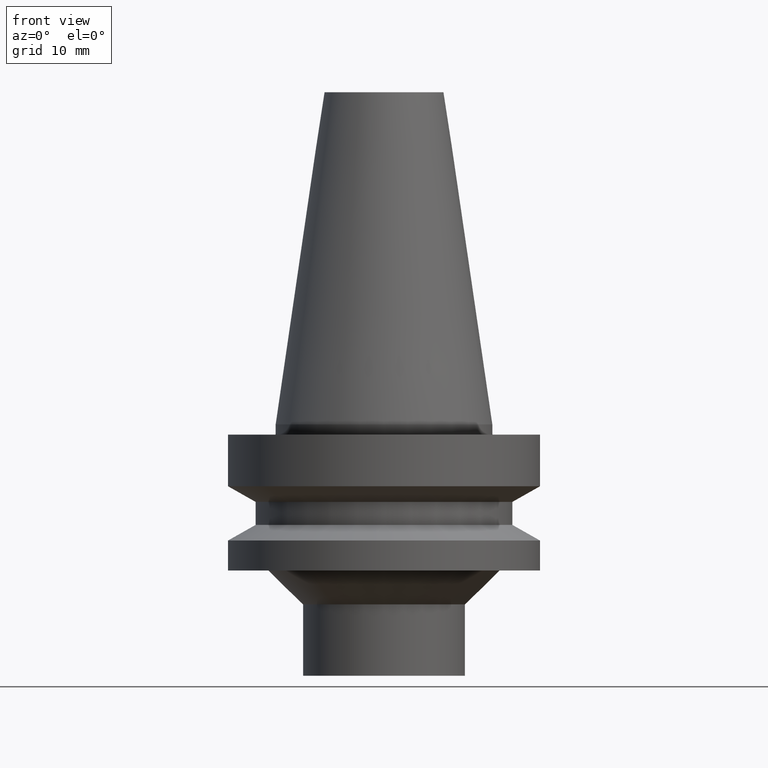
[diagram: clean part render]
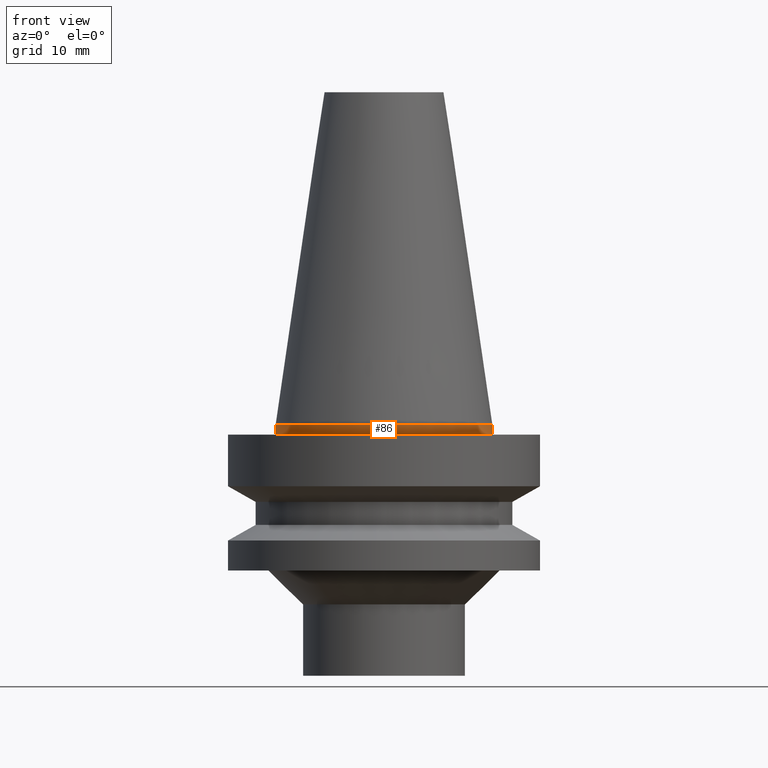
[diagram: same view with one face highlighted and labeled with its STEP entity id]
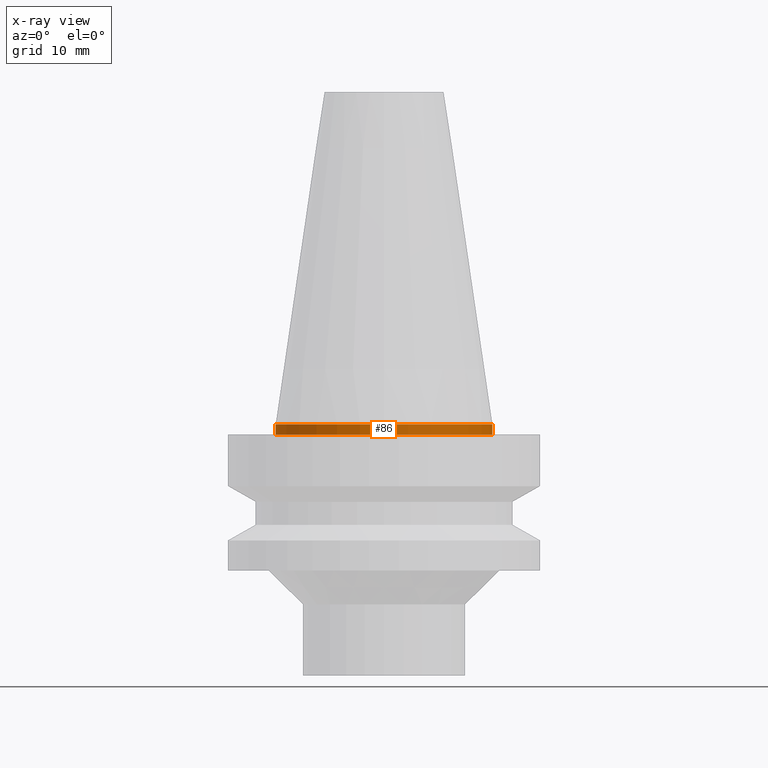
[diagram: x-ray of the same camera — body ghosted, the highlighted face saturated]
A machine part, front view. The second image highlights one B-rep face of the part: STEP entity #86.
The next image is the same camera in x-ray: the body ghosted, the highlighted face saturated — about 0% of this face is hidden behind the body in this view.
In plain terms, the highlighted cylindrical surface (bore or boss wall) has radius 15.9479 mm, axis along (0, 0, -1).
Its self-contained STEP definition (entity closure, byte-faithful):
#86=ADVANCED_FACE('',(#120,#121),#122,.T.);
#120=FACE_BOUND('',#157,.T.);
#121=FACE_BOUND('',#158,.T.);
#122=CYLINDRICAL_SURFACE('',#159,15.9479189999998);
#157=EDGE_LOOP('',(#216));
#158=EDGE_LOOP('',(#217));
#159=AXIS2_PLACEMENT_3D('',#218,#219,#220);
#216=ORIENTED_EDGE('',*,*,#237,.F.);
#217=ORIENTED_EDGE('',*,*,#236,.T.);
#218=CARTESIAN_POINT('',(7.65404249467096E-017,1.53080849893419E-016,-1.25));
#219=DIRECTION('',(6.12323399573677E-017,1.22464679914735E-016,-1.0));
#220=DIRECTION('',(-1.23259516440783E-032,1.0,1.22464679914735E-016));
#236=EDGE_CURVE('',#258,#258,#259,.T.);
#237=EDGE_CURVE('',#260,#260,#261,.T.);
#258=VERTEX_POINT('',#282);
#259=CIRCLE('',#283,15.9479189999996);
#260=VERTEX_POINT('',#284);
#261=CIRCLE('',#285,15.9479189999999);
#282=CARTESIAN_POINT('',(1.22464679914735E-016,15.9479189999996,-2.0));
#283=AXIS2_PLACEMENT_3D('',#316,#317,#318);
#284=CARTESIAN_POINT('',(3.06161699786833E-017,15.9479189999999,-0.499999999999992));
#285=AXIS2_PLACEMENT_3D('',#319,#320,#321);
#316=CARTESIAN_POINT('',(1.22464679914735E-016,2.44929359829471E-016,-2.0));
#317=DIRECTION('',(-6.12323399573676E-017,-1.22464679914735E-016,1.0));
#318=DIRECTION('',(-1.23259516440783E-032,1.0,1.22464679914735E-016));
#319=CARTESIAN_POINT('',(3.06161699786834E-017,6.12323399573668E-017,-0.499999999999993));
#320=DIRECTION('',(-6.12323399573676E-017,-1.22464679914735E-016,1.0));
#321=DIRECTION('',(-1.23259516440783E-032,1.0,1.22464679914735E-016));